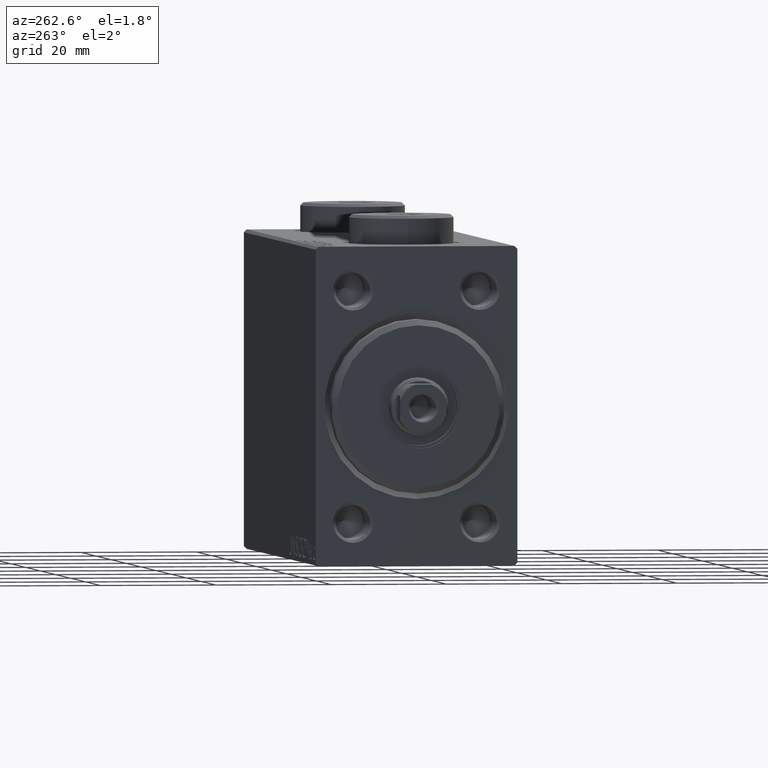
[diagram: clean part render]
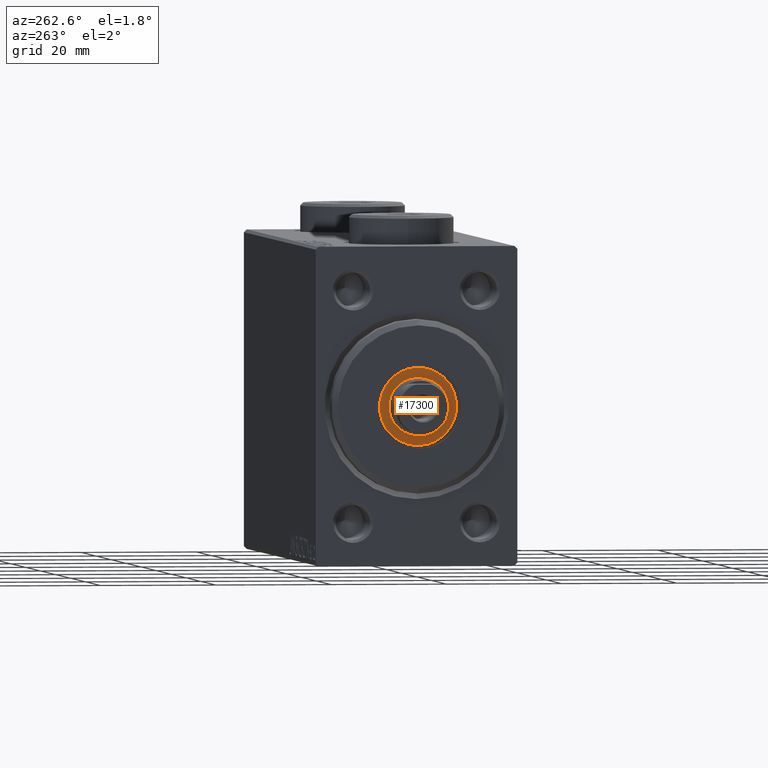
[diagram: same view with one face highlighted and labeled with its STEP entity id]
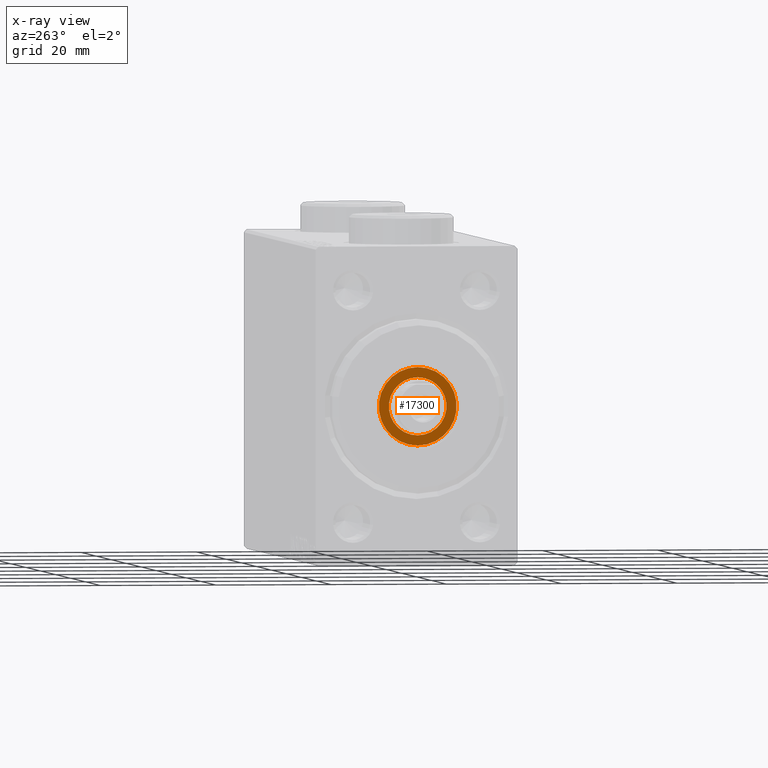
[diagram: x-ray of the same camera — body ghosted, the highlighted face saturated]
A machine part, auxiliary view. The second image highlights one B-rep face of the part: STEP entity #17300.
The next image is the same camera in x-ray: the body ghosted, the highlighted face saturated — about 0% of this face is hidden behind the body in this view.
In plain terms, the highlighted planar face has unit normal (-1, 0, 0).
Its self-contained STEP definition (entity closure, byte-faithful):
#198 = CARTESIAN_POINT ( 'NONE',  ( 1.499999999999999556, 0.000000000000000000, 0.000000000000000000 ) ) ;
#216 = AXIS2_PLACEMENT_3D ( 'NONE', #198, #10767, #24602 ) ;
#355 = VERTEX_POINT ( 'NONE', #8962 ) ;
#2256 = VERTEX_POINT ( 'NONE', #6035 ) ;
#2699 = ORIENTED_EDGE ( 'NONE', *, *, #12814, .F. ) ;
#3762 = DIRECTION ( 'NONE',  ( 1.000000000000000000, 0.000000000000000000, 0.000000000000000000 ) ) ;
#3772 = CARTESIAN_POINT ( 'NONE',  ( 1.500000000000000000, 0.000000000000000000, 0.000000000000000000 ) ) ;
#6035 = CARTESIAN_POINT ( 'NONE',  ( 1.500000000000000000, 0.000000000000000000, 6.750000000000000000 ) ) ;
#8549 = DIRECTION ( 'NONE',  ( 0.000000000000000000, 0.000000000000000000, -1.000000000000000000 ) ) ;
#8962 = CARTESIAN_POINT ( 'NONE',  ( 1.499999999999999556, 0.000000000000000000, -5.000000000000000000 ) ) ;
#10440 = DIRECTION ( 'NONE',  ( 0.000000000000000000, 0.000000000000000000, -1.000000000000000000 ) ) ;
#10645 = ORIENTED_EDGE ( 'NONE', *, *, #39055, .T. ) ;
#10767 = DIRECTION ( 'NONE',  ( 1.000000000000000000, 0.000000000000000000, 0.000000000000000000 ) ) ;
#10844 = DIRECTION ( 'NONE',  ( 0.000000000000000000, 0.000000000000000000, -1.000000000000000000 ) ) ;
#11562 = CARTESIAN_POINT ( 'NONE',  ( 1.499999999999999556, 6.123233995736765296E-16, 5.000000000000000000 ) ) ;
#12151 = ORIENTED_EDGE ( 'NONE', *, *, #44739, .T. ) ;
#12814 = EDGE_CURVE ( 'NONE', #355, #32527, #25433, .T. ) ;
#13201 = DIRECTION ( 'NONE',  ( 0.000000000000000000, 0.000000000000000000, -1.000000000000000000 ) ) ;
#14300 = CARTESIAN_POINT ( 'NONE',  ( 1.499999999999999556, 0.000000000000000000, 0.000000000000000000 ) ) ;
#16890 = FACE_BOUND ( 'NONE', #44902, .T. ) ;
#17300 = ADVANCED_FACE ( 'NONE', ( #16890, #34853 ), #21049, .T. ) ;
#17915 = AXIS2_PLACEMENT_3D ( 'NONE', #3772, #42899, #10440 ) ;
#19143 = DIRECTION ( 'NONE',  ( 1.000000000000000000, 0.000000000000000000, 0.000000000000000000 ) ) ;
#21049 = PLANE ( 'NONE',  #32255 ) ;
#22603 = CARTESIAN_POINT ( 'NONE',  ( 1.500000000000000000, 0.000000000000000000, 0.000000000000000000 ) ) ;
#24602 = DIRECTION ( 'NONE',  ( 0.000000000000000000, 0.000000000000000000, -1.000000000000000000 ) ) ;
#25433 = CIRCLE ( 'NONE', #29114, 5.000000000000000000 ) ;
#25435 = AXIS2_PLACEMENT_3D ( 'NONE', #22603, #19143, #8549 ) ;
#29032 = DIRECTION ( 'NONE',  ( 1.000000000000000000, 0.000000000000000000, 0.000000000000000000 ) ) ;
#29114 = AXIS2_PLACEMENT_3D ( 'NONE', #14300, #29032, #10844 ) ;
#32012 = VERTEX_POINT ( 'NONE', #39529 ) ;
#32255 = AXIS2_PLACEMENT_3D ( 'NONE', #38752, #3762, #13201 ) ;
#32527 = VERTEX_POINT ( 'NONE', #11562 ) ;
#32554 = CIRCLE ( 'NONE', #216, 5.000000000000000000 ) ;
#33508 = CIRCLE ( 'NONE', #25435, 6.750000000000000000 ) ;
#34853 = FACE_OUTER_BOUND ( 'NONE', #35661, .T. ) ;
#35661 = EDGE_LOOP ( 'NONE', ( #12151, #10645 ) ) ;
#36388 = EDGE_CURVE ( 'NONE', #32527, #355, #32554, .T. ) ;
#37016 = CIRCLE ( 'NONE', #17915, 6.750000000000000000 ) ;
#38752 = CARTESIAN_POINT ( 'NONE',  ( 1.500000000000000000, 0.000000000000000000, 0.000000000000000000 ) ) ;
#39055 = EDGE_CURVE ( 'NONE', #32012, #2256, #37016, .T. ) ;
#39529 = CARTESIAN_POINT ( 'NONE',  ( 1.500000000000000000, 8.266365894244632361E-16, -6.750000000000000000 ) ) ;
#42064 = ORIENTED_EDGE ( 'NONE', *, *, #36388, .F. ) ;
#42899 = DIRECTION ( 'NONE',  ( 1.000000000000000000, 0.000000000000000000, 0.000000000000000000 ) ) ;
#44739 = EDGE_CURVE ( 'NONE', #2256, #32012, #33508, .T. ) ;
#44902 = EDGE_LOOP ( 'NONE', ( #2699, #42064 ) ) ;